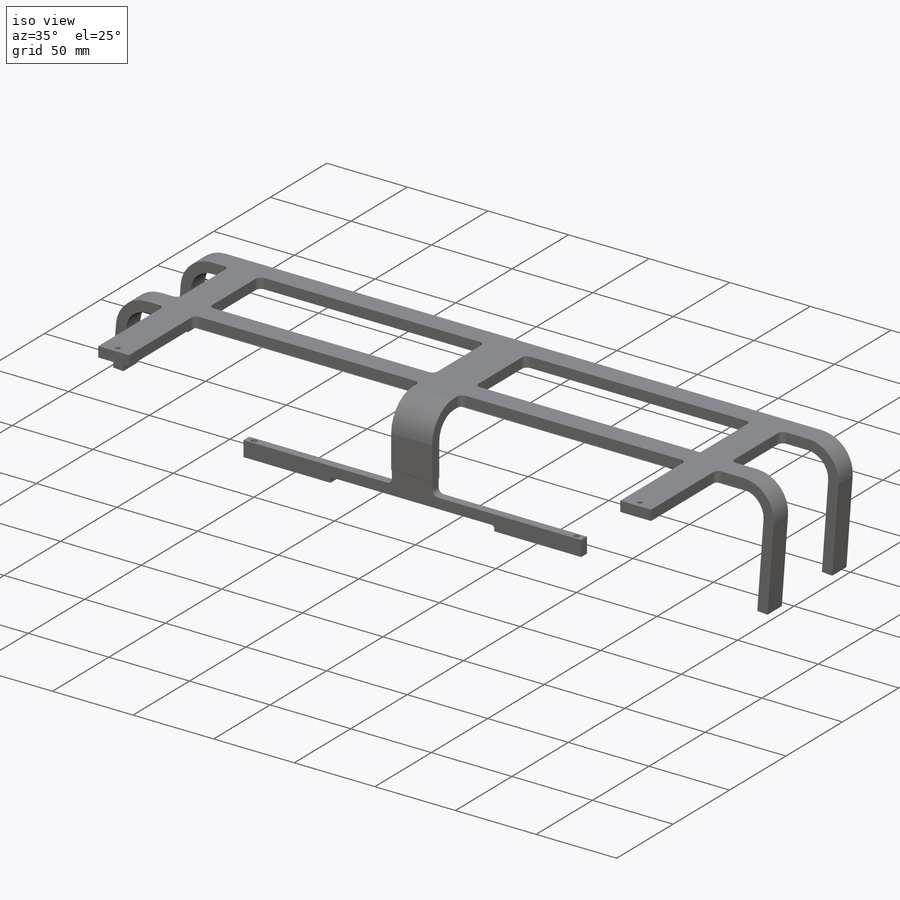
[diagram: iso view]
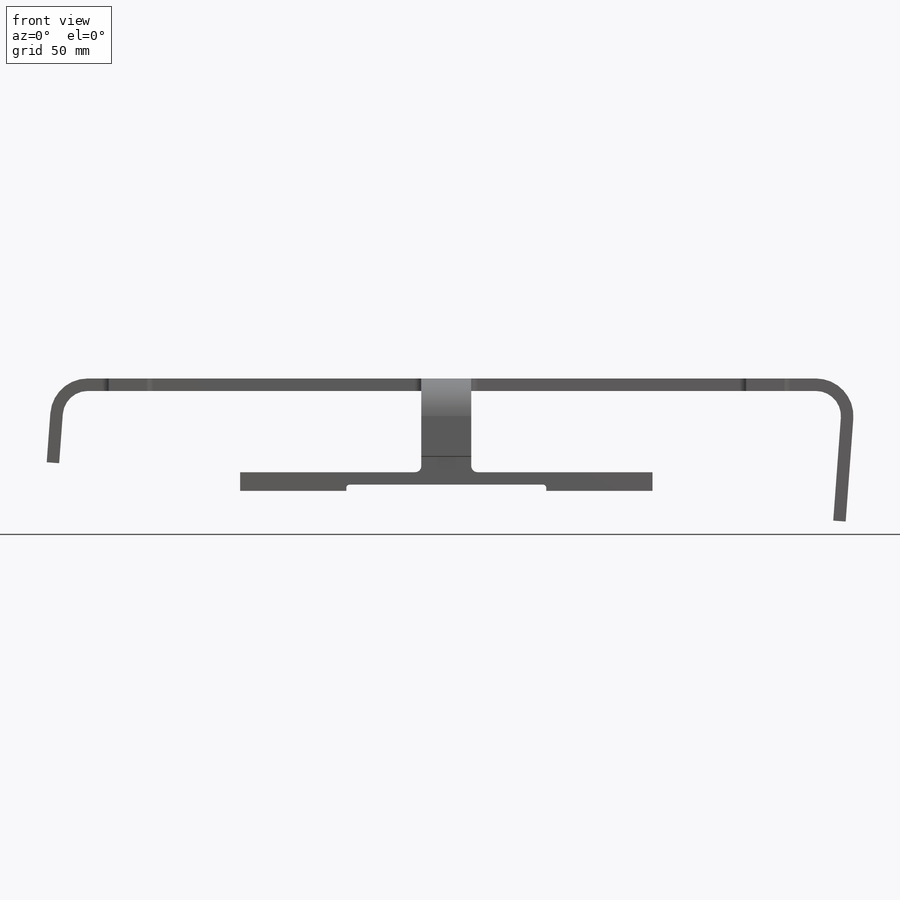
[diagram: front view]
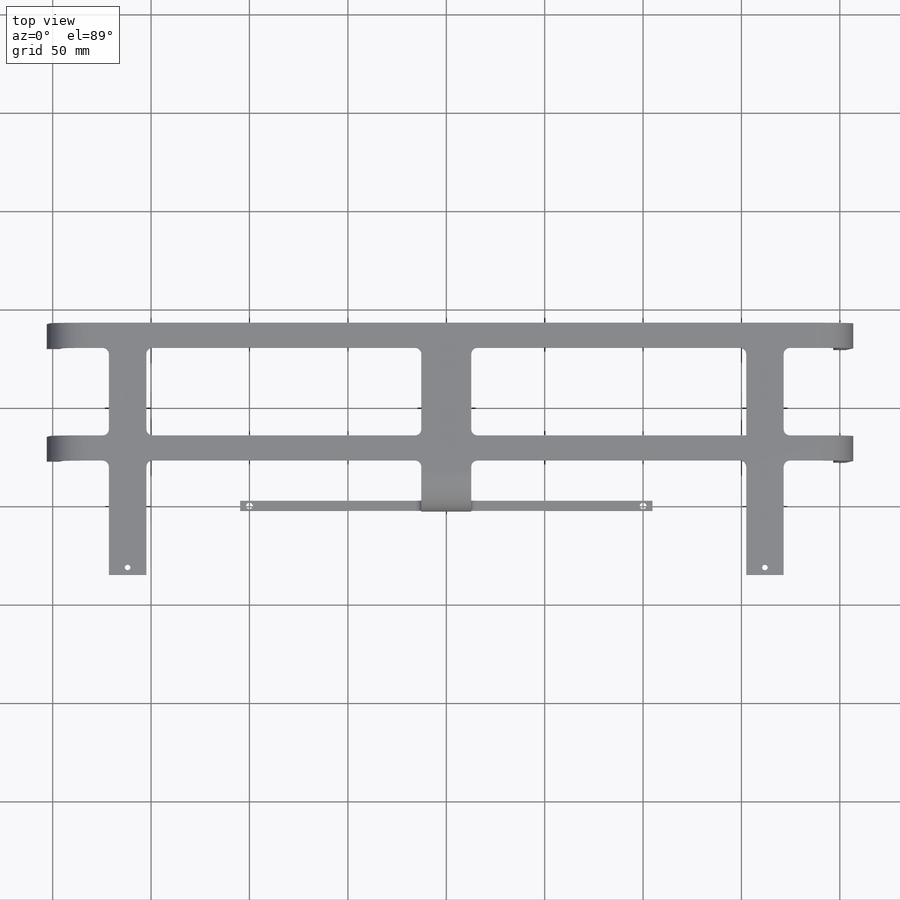
[diagram: top view]
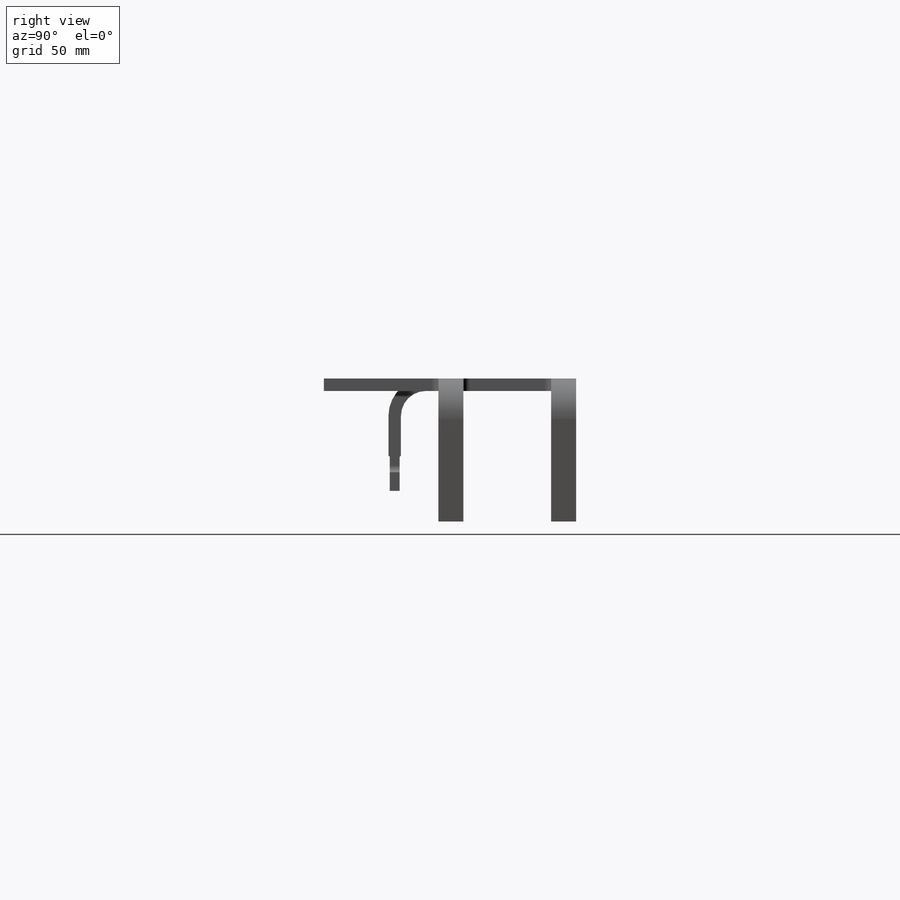
[diagram: right view]
SOLIDWORKS PART (.sldprt)
format: sldprt  version: not decoded by parser v0  size: 1,082,880 bytes
history: native  units: mm
features: sketch x10, plane x4, cut_extrude x4, fillet x3, sheet_metal_op x2, material x1, extrude x1 + 5 further entries (+13 scaffold rows collapsed; 1 parser-record rows omitted)
feature tree (44):
  scaffold x13  (default folders/planes/origin — collapsed)
  material  "6061 Alloy"
  plane  "Plane1"
  plane  "Plane2"
  plane  "Plane3"
  "Axis2"
  "Axis3"
  plane  "Plane5"  Offset=57.15mm
  sketch  "Sketch1"  dims[c1.D1=126.0mm c1.D2=~77.333624mm c1.D3=649.2875mm c2.D2=~228.935263mm]
  sketch  "Sketch2"  dims[c1.D1=~266.330525mm c1.D2=~230.98731mm c2.D1=~92.187244mm c2.D2=~47.161392mm c2.Thickness=6.35mm c2.D6=1.0mm c2.D7=5.0mm]
  sketch  "Sketch3"  dims[c1.D11=3.175mm c1.D1=6.35mm c1.D2=12.7mm c1.D3=9.525mm c1.D4=104.7625mm c2.D1=12.7mm c2.D5=3.175mm c2.D6=101.6mm c2.D7=~57.262244mm c2.D8=12.7mm c2.D9=19.05mm c2.D10=152.4mm]
  cut_extrude  "Cut-Extrude1"  [1 undecoded]
  fillet  "Fillet4"  Radius=1.5875mm
  sketch  "Sketch18"  dims[D1=5.08mm D2=17.78mm]
  cut_extrude  "Cut-Extrude4"  [1 undecoded]
  fillet  "Fillet3"  Radius=0.635mm
  sketch  "Sketch19"  dims[c1.D2=3.4544mm c1.D3=~18.280922mm c1.D1=100.0mm c2.D3=100.0mm]
  cut_extrude  "Cut-Extrude5"  [1 undecoded]
  sheet_metal_op  "Sheet-Metal1"
  sheet_metal_op  "Sheet-Metal2"
  sketch  "Sharp-Sketch2"  dims[D1=0.0mm]
  sketch  "Flat-Sketch2"  dims[c1.D1=~200.888637mm c1.D2=~3.406804mm c1.D3=~194.085228mm c2.D1=0.0mm c2.D4=~94.240969deg c2.D5=1.0 c2.D8=3.175mm c2.D9=3.175mm c2.FlatBend2=0.0 c3.D1=0.0mm c3.D4=~85.759031deg c3.D5=3.0 c3.D8=3.175mm c3.D9=3.175mm c3.FlatBend3=0.0 c4.D1=0.0mm c4.D4=90.0deg c4.D5=2.0 c4.D8=3.175mm c4.D9=3.175mm c5.D1=0.0mm]
  sketch  "Sketch21"  dims[D1=~58.198864mm]
  extrude  "Boss-Extrude2"  [1 undecoded]
  fillet  "Fillet5"  Radius=3.175mm
  sketch  "Sketch20"  dims[c1.D1=~70.649693mm c1.D2=2.8448mm c2.D1=3.81mm]
  cut_extrude  "Cut-Extrude6"  [1 undecoded]
  "Flat-Pattern2"
  sketch  "Bend-Lines2"
  "Flatten-<FlatBend2>1"
  "Flatten-<FlatBend3>1"
  parser-record x1  (decoder bookkeeping rows leaked as tree rows — omitted from the tree; the rows remain in map.json)
decode coverage: 12 of 20 modeling features carry decoded parameters; 5 rows unclassified (native names shown)
note: ~ marks probable driven/reference dimensions
note: 5 parameter values undecoded
summary: no parameter record found for 5 features
note: suppression state not decoded; provenance and decode notes live in map.json
